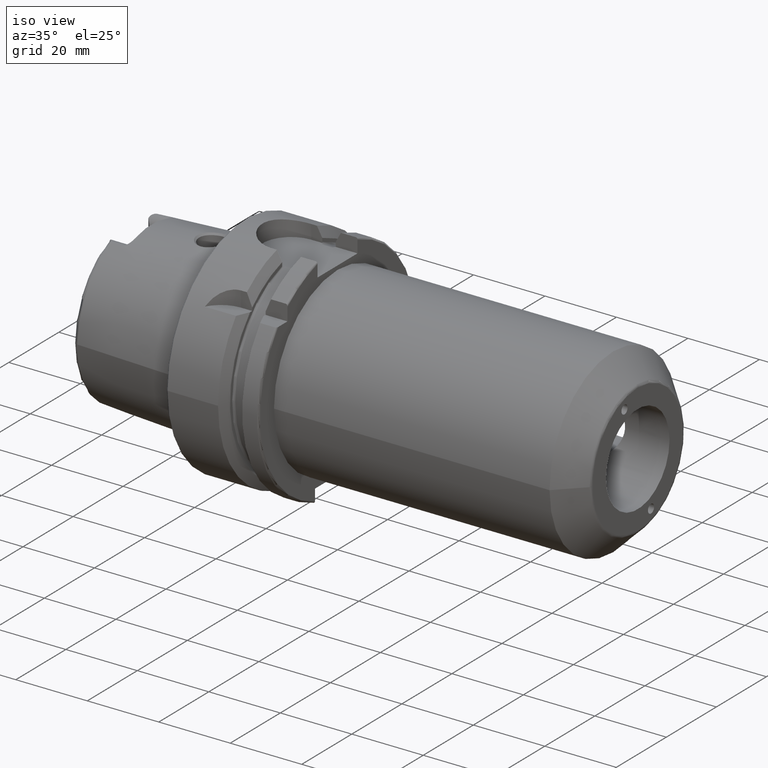
[diagram: clean part render]
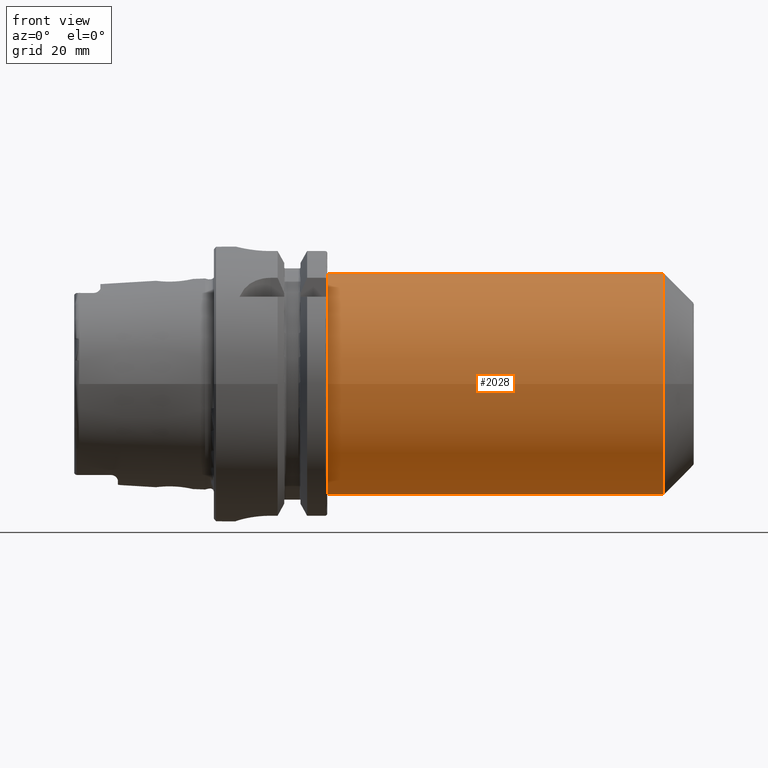
[diagram: tour spotlight — one face highlighted and labeled with its STEP entity id]
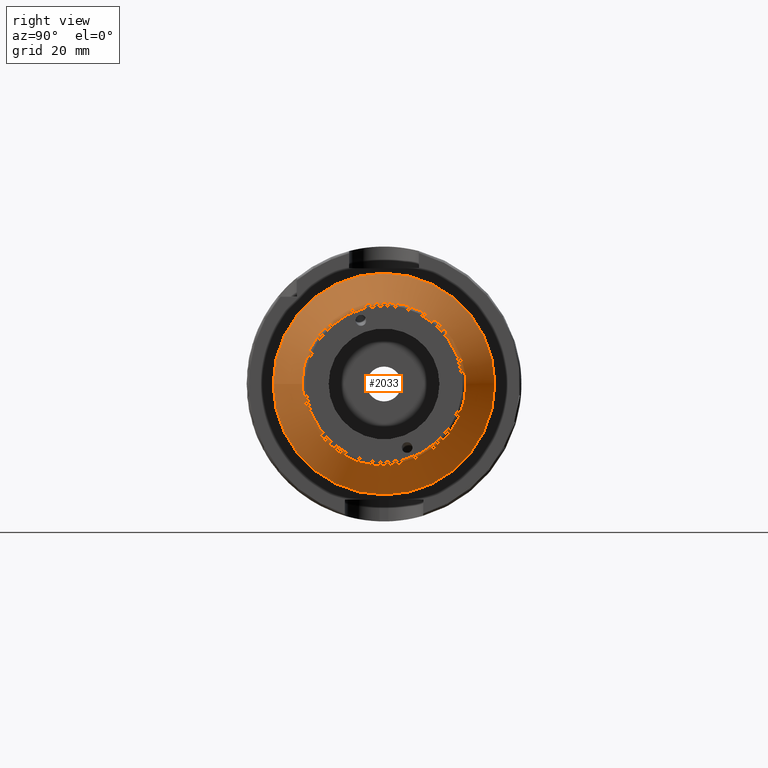
[diagram: tour spotlight — one face highlighted and labeled with its STEP entity id]
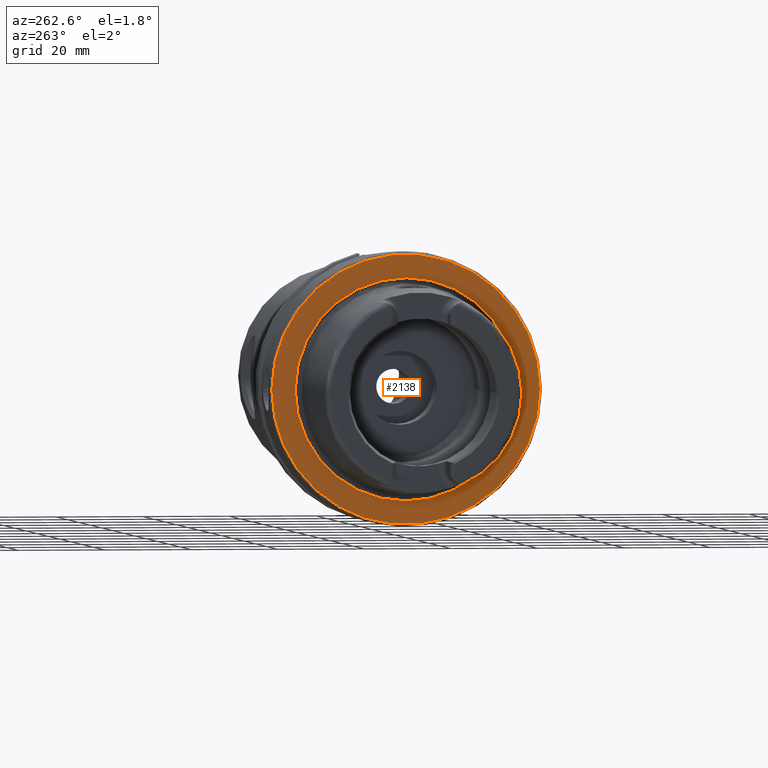
[diagram: tour spotlight — one face highlighted and labeled with its STEP entity id]
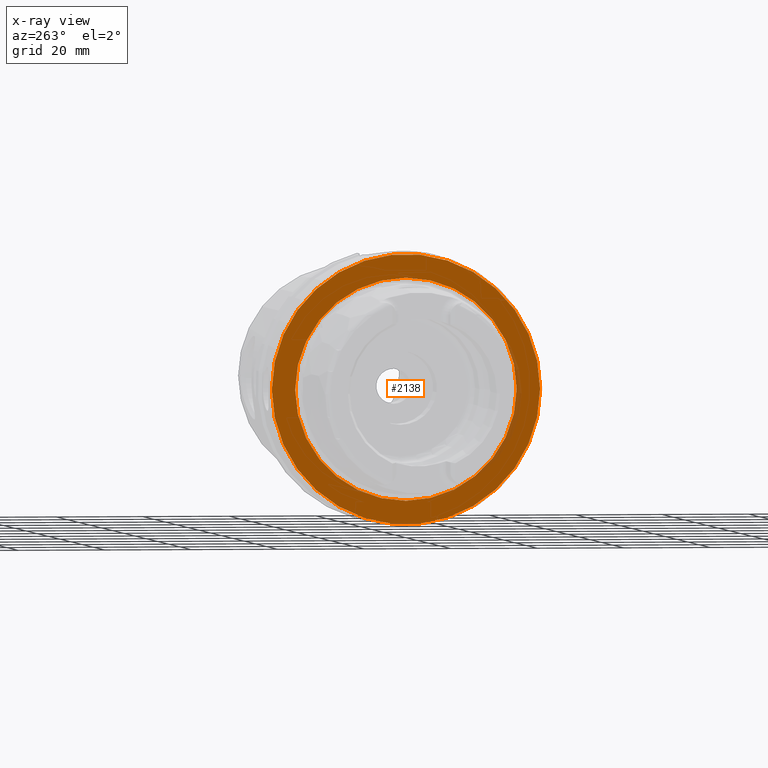
[diagram: x-ray of the same camera — body ghosted, this tour face saturated]
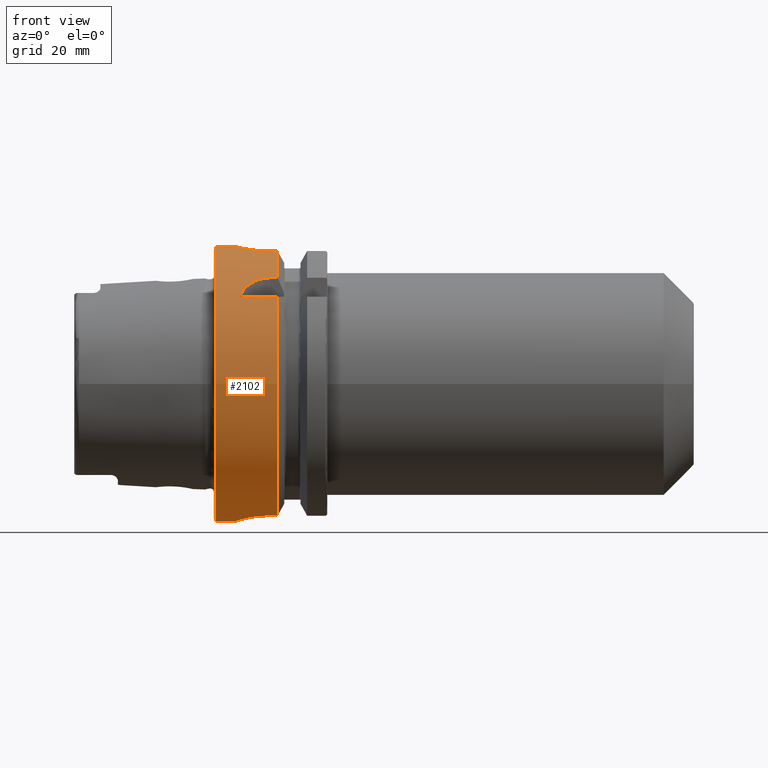
[diagram: tour spotlight — one face highlighted and labeled with its STEP entity id]
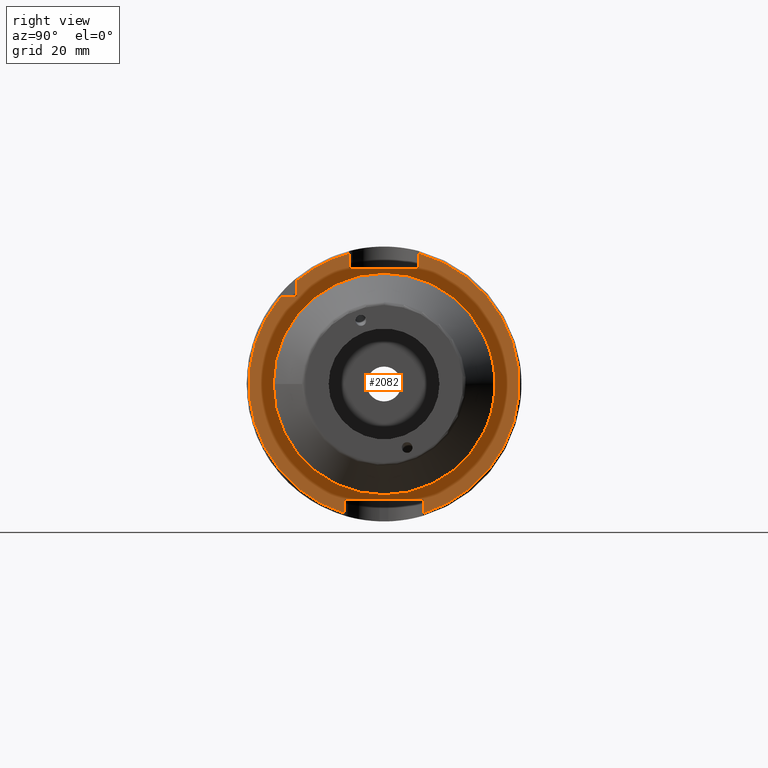
[diagram: tour spotlight — one face highlighted and labeled with its STEP entity id]
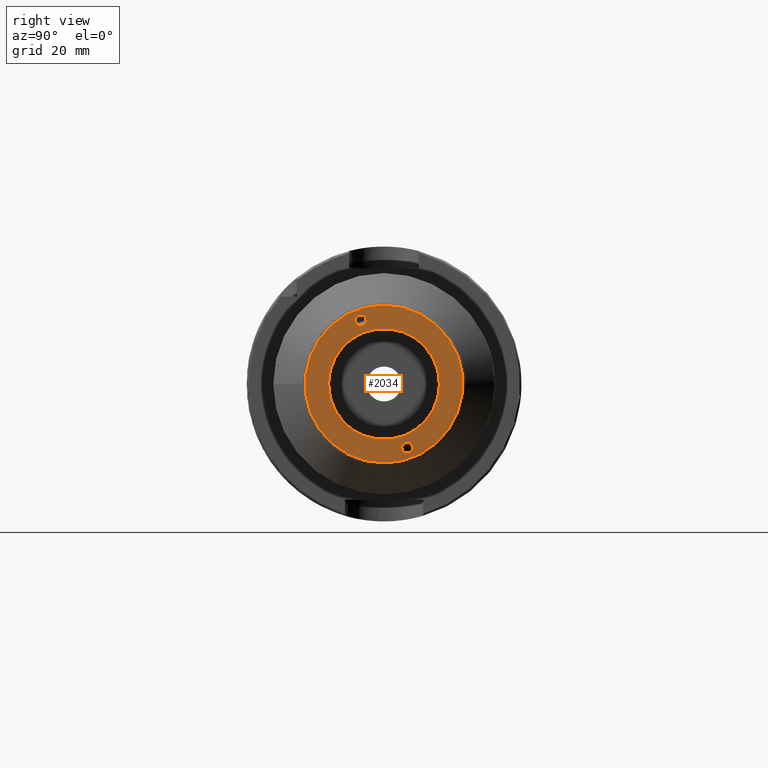
[diagram: tour spotlight — one face highlighted and labeled with its STEP entity id]
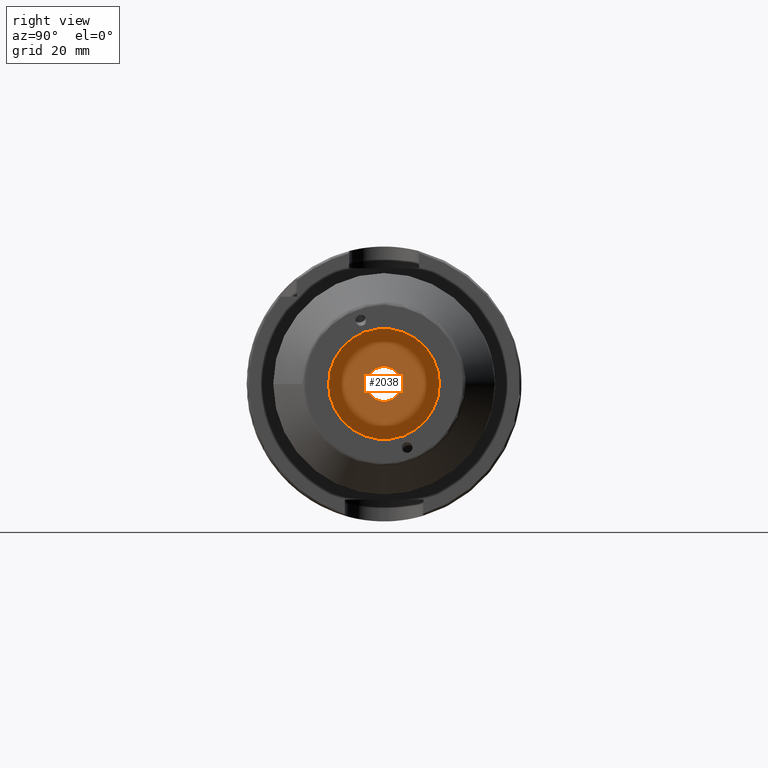
[diagram: tour spotlight — one face highlighted and labeled with its STEP entity id]
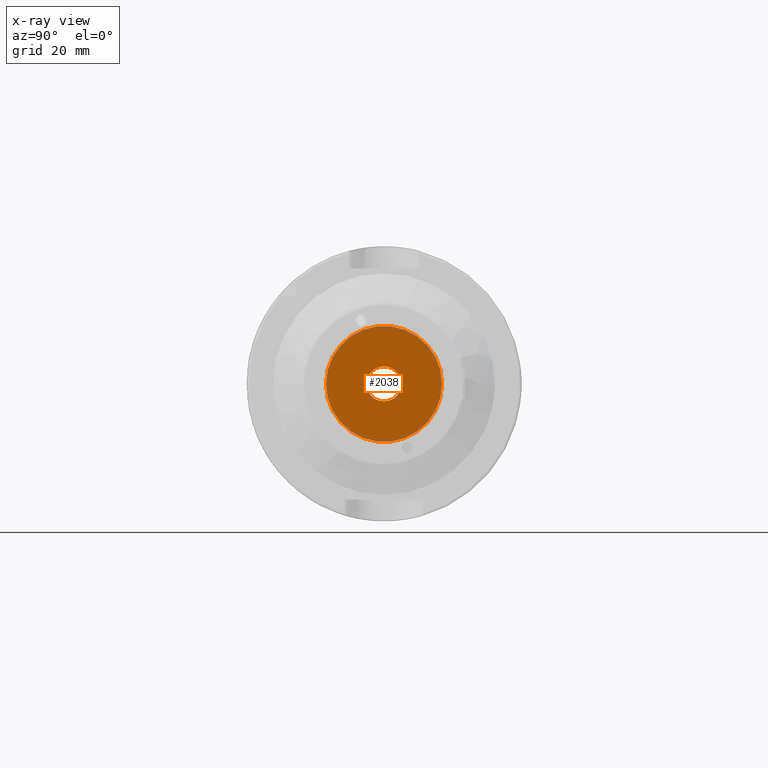
[diagram: x-ray of the same camera — body ghosted, this tour face saturated]
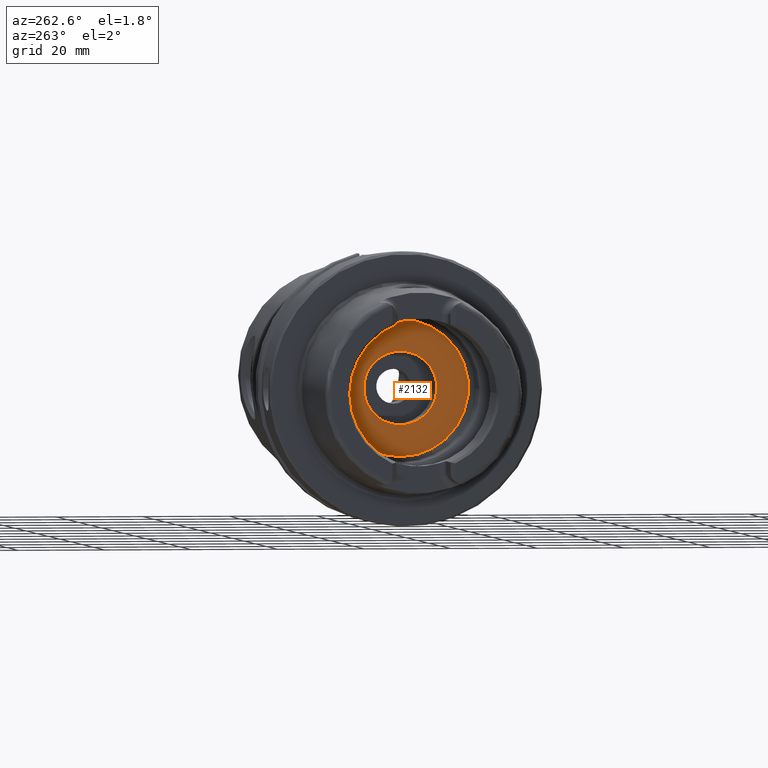
[diagram: tour spotlight — one face highlighted and labeled with its STEP entity id]
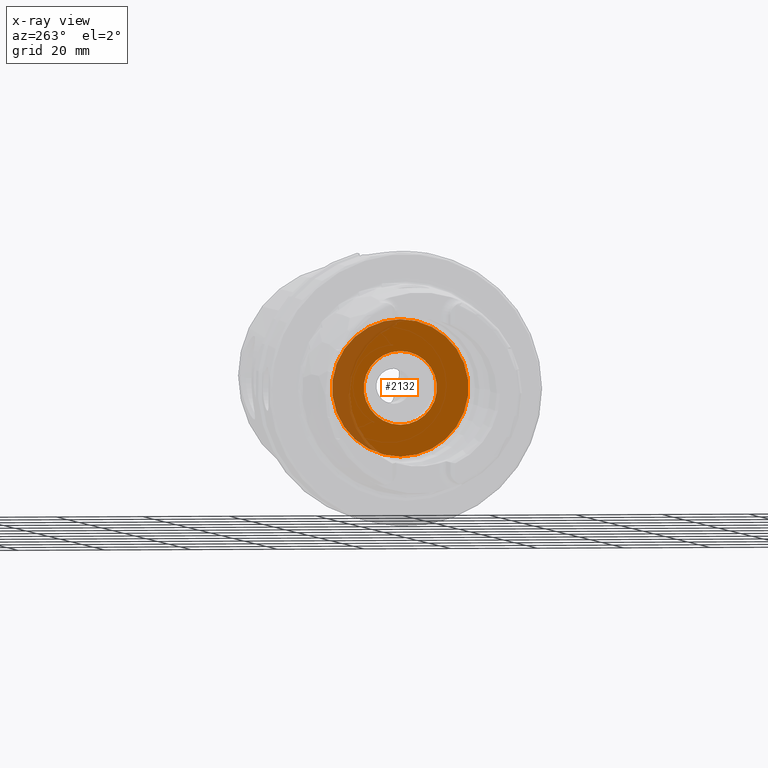
[diagram: x-ray of the same camera — body ghosted, this tour face saturated]
A machine part: a face-by-face anatomy tour. The part has 121 B-rep faces; the first image is the clean iso view, then the 8 largest visible faces are spotlighted one at a time (largest first), each with its STEP entity span.

Face 1 — front view, entity #2028. In plain terms, the highlighted cylindrical surface (bore or boss wall) has radius 25.4 mm, axis along (1, 0, 0).
Definition (entity closure, byte-faithful):
#93=FACE_BOUND('',#355,.T.);
#94=FACE_BOUND('',#356,.T.);
#111=B_SPLINE_CURVE_WITH_KNOTS('',3,(#3208,#3209,#3210,#3211,#3212,#3213,
#3214,#3215,#3216,#3217,#3218,#3219,#3220,#3221,#3222,#3223,#3224,#3225,
#3226,#3227,#3228,#3229,#3230,#3231,#3232,#3233,#3234,#3235,#3236,#3237,
#3238,#3239,#3240),.UNSPECIFIED.,.T.,.F.,(4,1,1,1,1,1,1,1,1,1,1,1,1,1,1,
1,1,1,1,1,1,1,1,1,1,1,1,1,1,1,4),(-9.21588439814322,-9.02780512471172,-8.83972585128023,
-8.69866639620661,-8.65164657784873,-8.46356730441724,-8.27548803098574,
-8.13442857591212,-8.08740875755425,-7.71125021069126,-7.46047784611594,
-7.33509166382827,-7.20970548154061,-6.95893311696529,-6.77085384353379,
-6.70816075238996,-6.45738838781464,-6.20661602323931,-6.06555656816569,
-6.01853674980782,-5.83045747637632,-5.64237820294483,-5.50131874787121,
-5.45429892951333,-5.07814038265034,-4.89006110921885,-4.70198183578736,
-4.51390256235586,-4.32582328892437,-4.13774401549287,-3.94966474206138),
 .UNSPECIFIED.);
#114=B_SPLINE_CURVE_WITH_KNOTS('',3,(#3288,#3289,#3290,#3291,#3292,#3293,
#3294,#3295,#3296,#3297,#3298,#3299,#3300,#3301,#3302,#3303,#3304,#3305,
#3306,#3307,#3308,#3309,#3310,#3311,#3312,#3313,#3314,#3315,#3316,#3317,
#3318),.UNSPECIFIED.,.T.,.F.,(4,1,1,1,1,1,1,1,1,1,1,1,1,1,1,1,1,1,1,1,1,
1,1,1,1,1,1,1,4),(-9.21588439814322,-8.83972585128023,-8.65164657784873,
-8.46356730441724,-8.21279493984191,-7.96202257526659,-7.83663639297893,
-7.71125021069126,-7.46047784611594,-7.33509166382827,-7.20970548154061,
-7.08431929925295,-6.95893311696529,-6.70816075238996,-6.45738838781463,
-6.20661602323931,-6.08122984095165,-5.95584365866398,-5.83045747637632,
-5.70507129408866,-5.57968511180099,-5.45429892951333,-5.07814038265034,
-4.89006110921885,-4.70198183578735,-4.51390256235586,-4.32582328892437,
-4.13774401549287,-3.94966474206138),.UNSPECIFIED.);
#193=CYLINDRICAL_SURFACE('',#2175,25.4);
#233=FACE_OUTER_BOUND('',#354,.T.);
#354=EDGE_LOOP('',(#1385,#1386,#1387,#1388));
#355=EDGE_LOOP('',(#1389));
#356=EDGE_LOOP('',(#1390));
#492=LINE('',#3285,#604);
#604=VECTOR('',#2443,25.4);
#712=CIRCLE('',#2176,25.4);
#713=CIRCLE('',#2177,25.4);
#836=VERTEX_POINT('',#3172);
#840=VERTEX_POINT('',#3282);
#841=VERTEX_POINT('',#3284);
#842=VERTEX_POINT('',#3287);
#1050=EDGE_CURVE('',#836,#836,#111,.T.);
#1054=EDGE_CURVE('',#840,#840,#712,.T.);
#1055=EDGE_CURVE('',#840,#841,#492,.T.);
#1056=EDGE_CURVE('',#841,#841,#713,.T.);
#1057=EDGE_CURVE('',#842,#842,#114,.T.);
#1385=ORIENTED_EDGE('',*,*,#1054,.F.);
#1386=ORIENTED_EDGE('',*,*,#1055,.T.);
#1387=ORIENTED_EDGE('',*,*,#1056,.F.);
#1388=ORIENTED_EDGE('',*,*,#1055,.F.);
#1389=ORIENTED_EDGE('',*,*,#1057,.F.);
#1390=ORIENTED_EDGE('',*,*,#1050,.F.);
#2028=ADVANCED_FACE('',(#233,#93,#94),#193,.T.);
#2175=AXIS2_PLACEMENT_3D('',#3281,#2439,#2440);
#2176=AXIS2_PLACEMENT_3D('',#3283,#2441,#2442);
#2177=AXIS2_PLACEMENT_3D('',#3286,#2444,#2445);
#2439=DIRECTION('center_axis',(1.,0.,0.));
#2440=DIRECTION('ref_axis',(0.,1.,0.));
#2441=DIRECTION('center_axis',(1.,0.,0.));
#2442=DIRECTION('ref_axis',(0.,0.,-1.));
#2443=DIRECTION('',(-1.,0.,0.));
#2444=DIRECTION('center_axis',(-1.,0.,0.));
#2445=DIRECTION('ref_axis',(0.,1.,0.));
#3172=CARTESIAN_POINT('',(56.3386,25.4,5.55111512312578E-16));
#3208=CARTESIAN_POINT('Ctrl Pts',(56.3386,25.4,5.55111512312578E-16));
#3209=CARTESIAN_POINT('Ctrl Pts',(56.3386,25.4,0.699313079614192));
#3210=CARTESIAN_POINT('Ctrl Pts',(56.4938320971844,25.3402153227254,2.1492527990145));
#3211=CARTESIAN_POINT('Ctrl Pts',(57.1709552586074,25.0916539260704,4.07394544882475));
#3212=CARTESIAN_POINT('Ctrl Pts',(57.9191296848627,24.8414150528071,5.32394253799501));
#3213=CARTESIAN_POINT('Ctrl Pts',(58.7848866548021,24.5744711166452,6.45554682898256));
#3214=CARTESIAN_POINT('Ctrl Pts',(59.8666131696035,24.2699988533883,7.53395137506705));
#3215=CARTESIAN_POINT('Ctrl Pts',(61.575470473689,23.8994382789921,8.61602243156506));
#3216=CARTESIAN_POINT('Ctrl Pts',(62.9570570042602,23.7008162556975,9.13652128466162));
#3217=CARTESIAN_POINT('Ctrl Pts',(65.104317133333,23.4863737769105,9.67716600384494));
#3218=CARTESIAN_POINT('Ctrl Pts',(67.6872707753399,23.4867355364431,9.67802944275514));
#3219=CARTESIAN_POINT('Ctrl Pts',(70.5041159923409,23.9086917129853,8.60657543240663));
#3220=CARTESIAN_POINT('Ctrl Pts',(72.0913833719856,24.2704481401536,7.50782121249527));
#3221=CARTESIAN_POINT('Ctrl Pts',(73.4379333940325,24.6303671138508,6.27099023863485));
#3222=CARTESIAN_POINT('Ctrl Pts',(74.6843596677151,25.0385206770496,4.48516542598071));
#3223=CARTESIAN_POINT('Ctrl Pts',(75.3425340873004,25.2800716960369,2.6142553590417));
#3224=CARTESIAN_POINT('Ctrl Pts',(75.6960069272916,25.4128000700879,0.702490983242716));
#3225=CARTESIAN_POINT('Ctrl Pts',(75.7042485506348,25.4159440598906,-1.40855398697861));
#3226=CARTESIAN_POINT('Ctrl Pts',(74.9576028044709,25.1350037074906,-3.87149180203649));
#3227=CARTESIAN_POINT('Ctrl Pts',(74.0815751805613,24.8415136794436,-5.32257908844066));
#3228=CARTESIAN_POINT('Ctrl Pts',(73.2163147279893,24.5748536746509,-6.45625941339476));
#3229=CARTESIAN_POINT('Ctrl Pts',(72.1327472171503,24.270131272988,-7.53147065672028));
#3230=CARTESIAN_POINT('Ctrl Pts',(70.4244043434215,23.8994551161301,-8.61610748889955));
#3231=CARTESIAN_POINT('Ctrl Pts',(69.042288010667,23.700713397532,-9.13614277230994));
#3232=CARTESIAN_POINT('Ctrl Pts',(66.8963356018271,23.4864598109728,-9.67742028955726));
#3233=CARTESIAN_POINT('Ctrl Pts',(64.5558519067611,23.4871590714245,-9.67776341225542));
#3234=CARTESIAN_POINT('Ctrl Pts',(61.7239710039378,23.8663798129332,-8.71430963240455));
#3235=CARTESIAN_POINT('Ctrl Pts',(59.8748123604185,24.2690224036793,-7.53468361599722));
#3236=CARTESIAN_POINT('Ctrl Pts',(58.4165012817944,24.6772826259743,-6.09448369247938));
#3237=CARTESIAN_POINT('Ctrl Pts',(57.2281615112568,25.0700161599468,-4.2474059316437));
#3238=CARTESIAN_POINT('Ctrl Pts',(56.4962071963405,25.339683253983,-2.15016300749193));
#3239=CARTESIAN_POINT('Ctrl Pts',(56.3386,25.4,-0.699313079614161));
#3240=CARTESIAN_POINT('Ctrl Pts',(56.3386,25.4,5.55111512312578E-16));
#3281=CARTESIAN_POINT('Origin',(64.55,0.,0.));
#3282=CARTESIAN_POINT('',(103.1,-25.4,-3.11060286983428E-15));
#3283=CARTESIAN_POINT('Origin',(103.1,0.,0.));
#3284=CARTESIAN_POINT('',(26.,-25.4,-3.11060286983428E-15));
#3285=CARTESIAN_POINT('',(64.55,-25.4,-3.11060286983428E-15));
#3286=CARTESIAN_POINT('Origin',(26.,0.,0.));
#3287=CARTESIAN_POINT('',(79.2386,25.4,1.94289029309402E-15));
#3288=CARTESIAN_POINT('Ctrl Pts',(79.2386,25.4,1.94289029309402E-15));
#3289=CARTESIAN_POINT('Ctrl Pts',(79.2386,25.4,1.39862615922836));
#3290=CARTESIAN_POINT('Ctrl Pts',(79.7287302378019,25.2034578888794,3.63671102008616));
#3291=CARTESIAN_POINT('Ctrl Pts',(81.3209025467737,24.6758395513955,6.09393666127056));
#3292=CARTESIAN_POINT('Ctrl Pts',(82.9320682910099,24.2244379814923,7.69749153243879));
#3293=CARTESIAN_POINT('Ctrl Pts',(85.2817173410894,23.7334979416263,9.07350059350137));
#3294=CARTESIAN_POINT('Ctrl Pts',(87.7263567765047,23.5129982675131,9.60424958307581));
#3295=CARTESIAN_POINT('Ctrl Pts',(89.6010888323331,23.5147409565799,9.60341926329181));
#3296=CARTESIAN_POINT('Ctrl Pts',(91.5399390131449,23.6273724028359,9.32439383692116));
#3297=CARTESIAN_POINT('Ctrl Pts',(93.3978088221504,23.9093067448577,8.60395423347237));
#3298=CARTESIAN_POINT('Ctrl Pts',(94.9924694636818,24.2698770707355,7.51089736506685));
#3299=CARTESIAN_POINT('Ctrl Pts',(96.0007525932334,24.5404775415483,6.5814327612284));
#3300=CARTESIAN_POINT('Ctrl Pts',(96.8905944566888,24.8109281087553,5.48137647238583));
#3301=CARTESIAN_POINT('Ctrl Pts',(97.8782381577445,25.1426594052139,3.8090756776121));
#3302=CARTESIAN_POINT('Ctrl Pts',(98.6008681989769,25.4146112162586,1.40713474218647));
#3303=CARTESIAN_POINT('Ctrl Pts',(98.5972504243207,25.4136307619125,-1.40896016777873));
#3304=CARTESIAN_POINT('Ctrl Pts',(97.8769134059563,25.1422887860784,-3.80736258993673));
#3305=CARTESIAN_POINT('Ctrl Pts',(96.8890767378994,24.8106293122637,-5.48156071601987));
#3306=CARTESIAN_POINT('Ctrl Pts',(95.9994679421346,24.5405753158691,-6.57973364518465));
#3307=CARTESIAN_POINT('Ctrl Pts',(94.9917191006537,24.2698605404455,-7.51028582010259));
#3308=CARTESIAN_POINT('Ctrl Pts',(93.7929104883185,23.9995067309328,-8.32969837647721));
#3309=CARTESIAN_POINT('Ctrl Pts',(92.4711923670209,23.7682056133337,-8.96400757470613));
#3310=CARTESIAN_POINT('Ctrl Pts',(90.0900418066098,23.4864123620891,-9.67952373987339));
#3311=CARTESIAN_POINT('Ctrl Pts',(87.4646602786133,23.4873830762745,-9.67661347637205));
#3312=CARTESIAN_POINT('Ctrl Pts',(84.6257696975751,23.8663701308699,-8.71468108357823));
#3313=CARTESIAN_POINT('Ctrl Pts',(82.7745409899239,24.2698722129659,-7.53183023562838));
#3314=CARTESIAN_POINT('Ctrl Pts',(81.3207415440559,24.6765423627272,-6.09625070347835));
#3315=CARTESIAN_POINT('Ctrl Pts',(80.1291819398135,25.069982483487,-4.24735742649744));
#3316=CARTESIAN_POINT('Ctrl Pts',(79.3965957741184,25.3396457151291,-2.15044964079205));
#3317=CARTESIAN_POINT('Ctrl Pts',(79.2386,25.4,-0.699313079614162));
#3318=CARTESIAN_POINT('Ctrl Pts',(79.2386,25.4,4.9960036108132E-15));

Face 2 — right view, entity #2033. In plain terms, the highlighted conical surface has half-angle 45 deg.
Definition (entity closure, byte-faithful):
#238=FACE_OUTER_BOUND('',#361,.T.);
#361=EDGE_LOOP('',(#1409,#1410,#1411,#1412,#1413));
#496=LINE('',#3531,#608);
#608=VECTOR('',#2469,21.95);
#712=CIRCLE('',#2176,25.4);
#718=CIRCLE('',#2185,18.7928932188135);
#719=CIRCLE('',#2186,18.7928932188135);
#840=VERTEX_POINT('',#3282);
#849=VERTEX_POINT('',#3525);
#850=VERTEX_POINT('',#3527);
#1054=EDGE_CURVE('',#840,#840,#712,.T.);
#1068=EDGE_CURVE('',#849,#850,#718,.T.);
#1069=EDGE_CURVE('',#850,#849,#719,.T.);
#1070=EDGE_CURVE('',#850,#840,#496,.T.);
#1409=ORIENTED_EDGE('',*,*,#1069,.F.);
#1410=ORIENTED_EDGE('',*,*,#1070,.T.);
#1411=ORIENTED_EDGE('',*,*,#1054,.T.);
#1412=ORIENTED_EDGE('',*,*,#1070,.F.);
#1413=ORIENTED_EDGE('',*,*,#1068,.F.);
#2008=CONICAL_SURFACE('',#2187,21.95,0.785398163397449);
#2033=ADVANCED_FACE('',(#238),#2008,.T.);
#2176=AXIS2_PLACEMENT_3D('',#3283,#2441,#2442);
#2185=AXIS2_PLACEMENT_3D('',#3528,#2463,#2464);
#2186=AXIS2_PLACEMENT_3D('',#3529,#2465,#2466);
#2187=AXIS2_PLACEMENT_3D('',#3530,#2467,#2468);
#2441=DIRECTION('center_axis',(1.,0.,0.));
#2442=DIRECTION('ref_axis',(0.,0.,-1.));
#2463=DIRECTION('center_axis',(1.,0.,0.));
#2464=DIRECTION('ref_axis',(0.,-1.,3.06161699786838E-17));
#2465=DIRECTION('center_axis',(1.,0.,0.));
#2466=DIRECTION('ref_axis',(0.,-1.,3.06161699786838E-17));
#2467=DIRECTION('center_axis',(-1.,0.,0.));
#2468=DIRECTION('ref_axis',(0.,1.,0.));
#2469=DIRECTION('',(-0.707106781186547,-0.707106781186548,-8.65956056235494E-17));
#3282=CARTESIAN_POINT('',(103.1,-25.4,-3.11060286983428E-15));
#3283=CARTESIAN_POINT('Origin',(103.1,0.,0.));
#3525=CARTESIAN_POINT('',(109.707106781187,-2.30146565271379E-15,18.7928932188135));
#3527=CARTESIAN_POINT('',(109.707106781187,-18.7928932188135,-2.30146565271379E-15));
#3528=CARTESIAN_POINT('Origin',(109.707106781187,0.,-2.87683206589224E-15));
#3529=CARTESIAN_POINT('Origin',(109.707106781187,0.,-2.87683206589224E-15));
#3530=CARTESIAN_POINT('Origin',(106.55,0.,0.));
#3531=CARTESIAN_POINT('',(106.55,-21.95,-2.68809972412844E-15));

Face 3 — auxiliary view, entity #2138. An x-ray twin of the same camera follows (body ghosted, this face saturated) — the face is partly hidden behind the body. In plain terms, the highlighted planar face has unit normal (-1, 0, 0).
Definition (entity closure, byte-faithful):
#70=PLANE('',#2403);
#109=FACE_BOUND('',#481,.T.);
#343=FACE_OUTER_BOUND('',#480,.T.);
#480=EDGE_LOOP('',(#1985));
#481=EDGE_LOOP('',(#1986));
#824=CIRCLE('',#2402,25.5879092835167);
#825=CIRCLE('',#2404,31.);
#1035=VERTEX_POINT('',#4927);
#1036=VERTEX_POINT('',#4931);
#1353=EDGE_CURVE('',#1035,#1035,#824,.T.);
#1354=EDGE_CURVE('',#1036,#1036,#825,.T.);
#1985=ORIENTED_EDGE('',*,*,#1354,.F.);
#1986=ORIENTED_EDGE('',*,*,#1353,.T.);
#2138=ADVANCED_FACE('',(#343,#109),#70,.T.);
#2402=AXIS2_PLACEMENT_3D('',#4929,#2996,#2997);
#2403=AXIS2_PLACEMENT_3D('',#4930,#2998,#2999);
#2404=AXIS2_PLACEMENT_3D('',#4932,#3000,#3001);
#2996=DIRECTION('center_axis',(1.,0.,0.));
#2997=DIRECTION('ref_axis',(0.,0.,-1.));
#2998=DIRECTION('center_axis',(-1.,0.,0.));
#2999=DIRECTION('ref_axis',(0.,0.,1.));
#3000=DIRECTION('center_axis',(1.,0.,0.));
#3001=DIRECTION('ref_axis',(0.,0.,-1.));
#4927=CARTESIAN_POINT('',(-3.55618312575245E-16,-25.5879092835167,-3.13361512009315E-15));
#4929=CARTESIAN_POINT('Origin',(0.,0.,0.));
#4930=CARTESIAN_POINT('Origin',(0.,31.,0.));
#4931=CARTESIAN_POINT('',(-5.89805981832114E-16,-31.,-3.7964050773568E-15));
#4932=CARTESIAN_POINT('Origin',(0.,0.,0.));

Face 4 — front view, entity #2102. In plain terms, the highlighted cylindrical surface (bore or boss wall) has radius 31.5 mm, axis along (1, 0, 0).
Definition (entity closure, byte-faithful):
#105=FACE_BOUND('',#441,.T.);
#144=B_SPLINE_CURVE_WITH_KNOTS('',3,(#4261,#4262,#4263,#4264,#4265,#4266,
#4267,#4268,#4269,#4270,#4271,#4272,#4273,#4274,#4275,#4276,#4277,#4278,
#4279,#4280,#4281,#4282,#4283,#4284,#4285,#4286),.UNSPECIFIED.,.F.,.F.,
(4,2,2,2,2,2,2,2,2,2,2,2,4),(0.,0.188688694287612,0.377377388575223,0.56606194688798,
0.754746505200737,0.943431063513494,1.13211562182625,1.32080431611386,1.50949301040147,
1.69818170468909,1.8868703989767,2.07555495728945,2.26423951560221),
 .UNSPECIFIED.);
#145=B_SPLINE_CURVE_WITH_KNOTS('',3,(#4287,#4288,#4289,#4290,#4291,#4292,
#4293,#4294,#4295,#4296),.UNSPECIFIED.,.F.,.F.,(4,2,2,2,4),(2.26423951560221,
2.45292407391497,2.64160863222773,2.83029732651534,3.01898602080295),
 .UNSPECIFIED.);
#148=B_SPLINE_CURVE_WITH_KNOTS('',3,(#4358,#4359,#4360,#4361,#4362,#4363,
#4364,#4365,#4366,#4367,#4368,#4369),.UNSPECIFIED.,.F.,.F.,(4,2,2,2,2,4),
(1.1085154204615,1.31979218709236,1.52798350480179,1.73617482251122,1.90421770126337,
2.07226058001552),.UNSPECIFIED.);
#158=B_SPLINE_CURVE_WITH_KNOTS('',3,(#4547,#4548,#4549,#4550,#4551,#4552,
#4553,#4554,#4555,#4556),.UNSPECIFIED.,.F.,.F.,(4,2,2,2,4),(1.20927420824097,
1.5131742975437,1.81707438684643,2.12000449915965,2.42293461147287),
 .UNSPECIFIED.);
#161=B_SPLINE_CURVE_WITH_KNOTS('',3,(#4582,#4583,#4584,#4585,#4586,#4587,
#4588,#4589,#4590,#4591),.UNSPECIFIED.,.F.,.F.,(4,2,2,2,4),(0.,0.30293011231322,
0.605860224626439,0.90976031392917,1.2136604032319),.UNSPECIFIED.);
#171=B_SPLINE_CURVE_WITH_KNOTS('',3,(#4746,#4747,#4748,#4749,#4750,#4751,
#4752,#4753,#4754,#4755,#4756,#4757,#4758,#4759,#4760,#4761,#4762,#4763),
 .UNSPECIFIED.,.F.,.F.,(4,2,2,2,2,2,2,2,4),(0.,0.302805879979318,0.605611759958635,
0.908372461246501,1.21113316253437,1.51389386382223,1.8166545651101,2.11946044508942,
2.42226632506874),.UNSPECIFIED.);
#215=CYLINDRICAL_SURFACE('',#2325,31.5);
#307=FACE_OUTER_BOUND('',#440,.T.);
#440=EDGE_LOOP('',(#1802,#1803,#1804,#1805,#1806,#1807,#1808,#1809,#1810,
#1811,#1812,#1813,#1814,#1815,#1816,#1817,#1818,#1819));
#441=EDGE_LOOP('',(#1820,#1821));
#534=LINE('',#4331,#646);
#540=LINE('',#4378,#652);
#561=LINE('',#4564,#673);
#562=LINE('',#4568,#674);
#577=LINE('',#4740,#689);
#580=LINE('',#4770,#692);
#582=LINE('',#4776,#694);
#646=VECTOR('',#2643,10.);
#652=VECTOR('',#2655,10.);
#673=VECTOR('',#2724,10.);
#674=VECTOR('',#2727,10.);
#689=VECTOR('',#2814,10.);
#692=VECTOR('',#2825,10.);
#694=VECTOR('',#2833,31.5);
#756=CIRCLE('',#2264,31.5);
#757=CIRCLE('',#2265,31.5);
#766=CIRCLE('',#2286,31.5);
#767=CIRCLE('',#2288,31.5);
#783=CIRCLE('',#2326,31.5);
#784=CIRCLE('',#2327,31.5);
#925=VERTEX_POINT('',#4258);
#926=VERTEX_POINT('',#4260);
#936=VERTEX_POINT('',#4328);
#937=VERTEX_POINT('',#4330);
#942=VERTEX_POINT('',#4357);
#944=VERTEX_POINT('',#4374);
#949=VERTEX_POINT('',#4390);
#950=VERTEX_POINT('',#4392);
#980=VERTEX_POINT('',#4545);
#981=VERTEX_POINT('',#4546);
#982=VERTEX_POINT('',#4566);
#983=VERTEX_POINT('',#4567);
#986=VERTEX_POINT('',#4581);
#987=VERTEX_POINT('',#4596);
#1006=VERTEX_POINT('',#4737);
#1007=VERTEX_POINT('',#4739);
#1008=VERTEX_POINT('',#4745);
#1010=VERTEX_POINT('',#4775);
#1170=EDGE_CURVE('',#926,#925,#144,.T.);
#1171=EDGE_CURVE('',#925,#926,#145,.T.);
#1181=EDGE_CURVE('',#937,#936,#534,.T.);
#1188=EDGE_CURVE('',#936,#942,#148,.T.);
#1192=EDGE_CURVE('',#942,#944,#540,.T.);
#1198=EDGE_CURVE('',#937,#949,#756,.T.);
#1199=EDGE_CURVE('',#949,#950,#757,.T.);
#1237=EDGE_CURVE('',#980,#981,#158,.T.);
#1241=EDGE_CURVE('',#981,#950,#561,.T.);
#1242=EDGE_CURVE('',#982,#983,#562,.T.);
#1247=EDGE_CURVE('',#983,#986,#161,.T.);
#1249=EDGE_CURVE('',#986,#980,#766,.T.);
#1250=EDGE_CURVE('',#982,#987,#767,.T.);
#1287=EDGE_CURVE('',#1007,#1006,#577,.T.);
#1289=EDGE_CURVE('',#1006,#1008,#171,.T.);
#1293=EDGE_CURVE('',#1008,#987,#580,.T.);
#1295=EDGE_CURVE('',#1007,#944,#783,.T.);
#1296=EDGE_CURVE('',#949,#1010,#582,.T.);
#1297=EDGE_CURVE('',#1010,#1010,#784,.T.);
#1802=ORIENTED_EDGE('',*,*,#1192,.T.);
#1803=ORIENTED_EDGE('',*,*,#1295,.F.);
#1804=ORIENTED_EDGE('',*,*,#1287,.T.);
#1805=ORIENTED_EDGE('',*,*,#1289,.T.);
#1806=ORIENTED_EDGE('',*,*,#1293,.T.);
#1807=ORIENTED_EDGE('',*,*,#1250,.F.);
#1808=ORIENTED_EDGE('',*,*,#1242,.T.);
#1809=ORIENTED_EDGE('',*,*,#1247,.T.);
#1810=ORIENTED_EDGE('',*,*,#1249,.T.);
#1811=ORIENTED_EDGE('',*,*,#1237,.T.);
#1812=ORIENTED_EDGE('',*,*,#1241,.T.);
#1813=ORIENTED_EDGE('',*,*,#1199,.F.);
#1814=ORIENTED_EDGE('',*,*,#1296,.T.);
#1815=ORIENTED_EDGE('',*,*,#1297,.T.);
#1816=ORIENTED_EDGE('',*,*,#1296,.F.);
#1817=ORIENTED_EDGE('',*,*,#1198,.F.);
#1818=ORIENTED_EDGE('',*,*,#1181,.T.);
#1819=ORIENTED_EDGE('',*,*,#1188,.T.);
#1820=ORIENTED_EDGE('',*,*,#1170,.T.);
#1821=ORIENTED_EDGE('',*,*,#1171,.T.);
#2102=ADVANCED_FACE('',(#307,#105),#215,.T.);
#2264=AXIS2_PLACEMENT_3D('',#4391,#2668,#2669);
#2265=AXIS2_PLACEMENT_3D('',#4393,#2670,#2671);
#2286=AXIS2_PLACEMENT_3D('',#4594,#2735,#2736);
#2288=AXIS2_PLACEMENT_3D('',#4597,#2739,#2740);
#2325=AXIS2_PLACEMENT_3D('',#4773,#2829,#2830);
#2326=AXIS2_PLACEMENT_3D('',#4774,#2831,#2832);
#2327=AXIS2_PLACEMENT_3D('',#4777,#2834,#2835);
#2643=DIRECTION('',(-1.,0.,0.));
#2655=DIRECTION('',(1.,0.,0.));
#2668=DIRECTION('center_axis',(1.,0.,0.));
#2669=DIRECTION('ref_axis',(0.,0.,-1.));
#2670=DIRECTION('center_axis',(1.,0.,0.));
#2671=DIRECTION('ref_axis',(0.,0.,-1.));
#2724=DIRECTION('',(1.,0.,0.));
#2727=DIRECTION('',(-1.,0.,0.));
#2735=DIRECTION('center_axis',(-1.,0.,0.));
#2736=DIRECTION('ref_axis',(0.,1.,0.));
#2739=DIRECTION('center_axis',(1.,0.,0.));
#2740=DIRECTION('ref_axis',(0.,0.,-1.));
#2814=DIRECTION('',(-1.,0.,0.));
#2825=DIRECTION('',(1.,0.,0.));
#2829=DIRECTION('center_axis',(1.,0.,0.));
#2830=DIRECTION('ref_axis',(0.,1.,0.));
#2831=DIRECTION('center_axis',(1.,0.,0.));
#2832=DIRECTION('ref_axis',(0.,0.,-1.));
#2833=DIRECTION('',(-1.,0.,0.));
#2834=DIRECTION('center_axis',(1.,0.,0.));
#2835=DIRECTION('ref_axis',(0.,0.,-1.));
#4258=CARTESIAN_POINT('',(12.,31.5,-6.12323399573677E-16));
#4260=CARTESIAN_POINT('',(7.,31.100643080168,5.));
#4261=CARTESIAN_POINT('Ctrl Pts',(7.,31.100643080168,5.));
#4262=CARTESIAN_POINT('Ctrl Pts',(6.37103768570796,31.100643080168,5.));
#4263=CARTESIAN_POINT('Ctrl Pts',(5.70089281579202,31.1216953112949,4.87408354368814));
#4264=CARTESIAN_POINT('Ctrl Pts',(4.46931934300962,31.1973810209855,4.36348784122736));
#4265=CARTESIAN_POINT('Ctrl Pts',(3.90779781350673,31.2508828501623,3.97886562537221));
#4266=CARTESIAN_POINT('Ctrl Pts',(3.021144092268,31.3510329557602,3.09221190413348));
#4267=CARTESIAN_POINT('Ctrl Pts',(2.63651425348544,31.4042391414288,2.5306861925578));
#4268=CARTESIAN_POINT('Ctrl Pts',(2.12591301120586,31.4792463697936,1.29909839144709));
#4269=CARTESIAN_POINT('Ctrl Pts',(2.,31.5,0.62894852770919));
#4270=CARTESIAN_POINT('Ctrl Pts',(2.,31.5,-0.62894852770919));
#4271=CARTESIAN_POINT('Ctrl Pts',(2.12591301120586,31.4792463697936,-1.29909839144709));
#4272=CARTESIAN_POINT('Ctrl Pts',(2.63651425348544,31.4042391414288,-2.5306861925578));
#4273=CARTESIAN_POINT('Ctrl Pts',(3.021144092268,31.3510329557602,-3.09221190413348));
#4274=CARTESIAN_POINT('Ctrl Pts',(3.90779781350673,31.2508828501623,-3.97886562537221));
#4275=CARTESIAN_POINT('Ctrl Pts',(4.46931934300962,31.1973810209855,-4.36348784122736));
#4276=CARTESIAN_POINT('Ctrl Pts',(5.70089281579202,31.1216953112949,-4.87408354368814));
#4277=CARTESIAN_POINT('Ctrl Pts',(6.37103768570796,31.100643080168,-5.));
#4278=CARTESIAN_POINT('Ctrl Pts',(7.62896231429204,31.100643080168,-5.));
#4279=CARTESIAN_POINT('Ctrl Pts',(8.29910718420798,31.1216953112949,-4.87408354368814));
#4280=CARTESIAN_POINT('Ctrl Pts',(9.53068065699038,31.1973810209855,-4.36348784122736));
#4281=CARTESIAN_POINT('Ctrl Pts',(10.0922021864933,31.2508828501623,-3.97886562537221));
#4282=CARTESIAN_POINT('Ctrl Pts',(10.978855907732,31.3510329557602,-3.09221190413348));
#4283=CARTESIAN_POINT('Ctrl Pts',(11.3634857465146,31.4042391414288,-2.53068619255779));
#4284=CARTESIAN_POINT('Ctrl Pts',(11.8740869887941,31.4792463697936,-1.29909839144708));
#4285=CARTESIAN_POINT('Ctrl Pts',(12.,31.5,-0.62894852770919));
#4286=CARTESIAN_POINT('Ctrl Pts',(12.,31.5,-4.16333634234434E-16));
#4287=CARTESIAN_POINT('Ctrl Pts',(12.,31.5,-1.11022302462516E-15));
#4288=CARTESIAN_POINT('Ctrl Pts',(12.,31.5,0.628948527709188));
#4289=CARTESIAN_POINT('Ctrl Pts',(11.8740869887941,31.4792463697936,1.29909839144708));
#4290=CARTESIAN_POINT('Ctrl Pts',(11.3634857465146,31.4042391414288,2.53068619255779));
#4291=CARTESIAN_POINT('Ctrl Pts',(10.978855907732,31.3510329557602,3.09221190413348));
#4292=CARTESIAN_POINT('Ctrl Pts',(10.0922021864933,31.2508828501623,3.97886562537221));
#4293=CARTESIAN_POINT('Ctrl Pts',(9.53068065699038,31.1973810209855,4.36348784122736));
#4294=CARTESIAN_POINT('Ctrl Pts',(8.29910718420798,31.1216953112949,4.87408354368814));
#4295=CARTESIAN_POINT('Ctrl Pts',(7.62896231429204,31.100643080168,5.));
#4296=CARTESIAN_POINT('Ctrl Pts',(7.,31.100643080168,5.));
#4328=CARTESIAN_POINT('',(5.88828609634419,-24.3361870472759,20.));
#4330=CARTESIAN_POINT('',(14.6225009252407,-24.3361870472759,20.));
#4331=CARTESIAN_POINT('',(7.56125046262034,-24.3361870472759,20.));
#4357=CARTESIAN_POINT('',(13.,-20.,24.3361870472759));
#4358=CARTESIAN_POINT('Ctrl Pts',(5.88828609634419,-24.3361870472759,20.));
#4359=CARTESIAN_POINT('Ctrl Pts',(6.11069532820048,-23.9044753723342,20.5253108035937));
#4360=CARTESIAN_POINT('Ctrl Pts',(6.38325999044306,-23.4713523250807,21.0173865932788));
#4361=CARTESIAN_POINT('Ctrl Pts',(7.044898076458,-22.6317364276543,21.9186738868096));
#4362=CARTESIAN_POINT('Ctrl Pts',(7.46714468561685,-22.1861072682036,22.3682920878559));
#4363=CARTESIAN_POINT('Ctrl Pts',(8.46725531403812,-21.3767026700071,23.143042657319));
#4364=CARTESIAN_POINT('Ctrl Pts',(9.04646427720221,-21.0147449478223,23.4683362269255));
#4365=CARTESIAN_POINT('Ctrl Pts',(10.1145001432702,-20.5200081116516,23.9011603796022));
#4366=CARTESIAN_POINT('Ctrl Pts',(10.670823971716,-20.3234249831704,24.0673462447194));
#4367=CARTESIAN_POINT('Ctrl Pts',(11.8334528721306,-20.063121855676,24.2847667849476));
#4368=CARTESIAN_POINT('Ctrl Pts',(12.4398570708262,-20.,24.3361870472759));
#4369=CARTESIAN_POINT('Ctrl Pts',(13.,-20.,24.3361870472759));
#4374=CARTESIAN_POINT('',(14.6225009252407,-20.,24.3361870472759));
#4378=CARTESIAN_POINT('',(7.56125046262035,-20.,24.3361870472759));
#4390=CARTESIAN_POINT('',(14.6225009252407,-31.5,-3.85763741731416E-15));
#4391=CARTESIAN_POINT('Origin',(14.6225009252407,0.,0.));
#4392=CARTESIAN_POINT('',(14.6225009252407,-9.,-30.1869176962472));
#4393=CARTESIAN_POINT('Origin',(14.6225009252407,0.,0.));
#4545=CARTESIAN_POINT('',(5.,-0.999999999999999,-31.4841229828623));
#4546=CARTESIAN_POINT('',(13.,-9.,-30.1869176962472));
#4547=CARTESIAN_POINT('Ctrl Pts',(5.,-0.999999999999997,-31.4841229828623));
#4548=CARTESIAN_POINT('Ctrl Pts',(5.,-2.01248971281587,-31.4519642432536));
#4549=CARTESIAN_POINT('Ctrl Pts',(5.2037733306458,-3.08756640398171,-31.3640631381934));
#4550=CARTESIAN_POINT('Ctrl Pts',(6.02370102555041,-5.05836608044729,-31.1070804719497));
#4551=CARTESIAN_POINT('Ctrl Pts',(6.63955745341061,-5.95454409907418,-30.9405445582004));
#4552=CARTESIAN_POINT('Ctrl Pts',(8.05472493283182,-7.36715009628369,-30.6348764237341));
#4553=CARTESIAN_POINT('Ctrl Pts',(8.9496642215883,-7.98063403850821,-30.4752177477269));
#4554=CARTESIAN_POINT('Ctrl Pts',(10.9171740660538,-8.79719825889174,-30.2496070227108));
#4555=CARTESIAN_POINT('Ctrl Pts',(11.9902329589559,-9.,-30.1869176962472));
#4556=CARTESIAN_POINT('Ctrl Pts',(13.,-9.,-30.1869176962472));
#4564=CARTESIAN_POINT('',(7.56125046262035,-8.99999999999999,-30.1869176962472));
#4566=CARTESIAN_POINT('',(14.6225009252407,9.,-30.1869176962472));
#4567=CARTESIAN_POINT('',(13.,9.00000000000001,-30.1869176962472));
#4568=CARTESIAN_POINT('',(7.56125046262034,9.00000000000001,-30.1869176962472));
#4581=CARTESIAN_POINT('',(5.,1.,-31.4841229828623));
#4582=CARTESIAN_POINT('Ctrl Pts',(13.,9.00000000000001,-30.1869176962472));
#4583=CARTESIAN_POINT('Ctrl Pts',(11.9902329589559,9.00000000000001,-30.1869176962472));
#4584=CARTESIAN_POINT('Ctrl Pts',(10.9171740660538,8.79719825889175,-30.2496070227108));
#4585=CARTESIAN_POINT('Ctrl Pts',(8.9496642215883,7.98063403850822,-30.4752177477269));
#4586=CARTESIAN_POINT('Ctrl Pts',(8.05472493283182,7.3671500962837,-30.6348764237341));
#4587=CARTESIAN_POINT('Ctrl Pts',(6.63955745341061,5.95454409907419,-30.9405445582004));
#4588=CARTESIAN_POINT('Ctrl Pts',(6.02370102555041,5.0583660804473,-31.1070804719497));
#4589=CARTESIAN_POINT('Ctrl Pts',(5.2037733306458,3.08756640398172,-31.3640631381934));
#4590=CARTESIAN_POINT('Ctrl Pts',(5.,2.01248971281588,-31.4519642432536));
#4591=CARTESIAN_POINT('Ctrl Pts',(5.,1.00000000000001,-31.4841229828623));
#4594=CARTESIAN_POINT('Origin',(5.,0.,0.));
#4596=CARTESIAN_POINT('',(14.6225009252407,8.,30.4671954731642));
#4597=CARTESIAN_POINT('Origin',(14.6225009252407,0.,0.));
#4737=CARTESIAN_POINT('',(13.,-8.,30.4671954731642));
#4739=CARTESIAN_POINT('',(14.6225009252407,-8.,30.4671954731642));
#4740=CARTESIAN_POINT('',(7.56125046262034,-8.,30.4671954731642));
#4745=CARTESIAN_POINT('',(13.,8.,30.4671954731642));
#4746=CARTESIAN_POINT('Ctrl Pts',(13.,-8.,30.4671954731643));
#4747=CARTESIAN_POINT('Ctrl Pts',(11.9906470667356,-8.,30.4671954731643));
#4748=CARTESIAN_POINT('Ctrl Pts',(10.9172075930168,-7.79737202490167,30.5225803085525));
#4749=CARTESIAN_POINT('Ctrl Pts',(8.94758399331801,-6.97961067526075,30.719895002943));
#4750=CARTESIAN_POINT('Ctrl Pts',(8.05099322370438,-6.36470172268915,30.8586830127239));
#4751=CARTESIAN_POINT('Ctrl Pts',(6.63540388828045,-4.94911238726521,31.1170994373341));
#4752=CARTESIAN_POINT('Ctrl Pts',(6.02041263015313,-4.05247770930662,31.2539072689014));
#4753=CARTESIAN_POINT('Ctrl Pts',(5.20259114887399,-2.08269813865027,31.4466478906396));
#4754=CARTESIAN_POINT('Ctrl Pts',(5.,-1.00920233762622,31.5));
#4755=CARTESIAN_POINT('Ctrl Pts',(5.,1.00920233762622,31.5));
#4756=CARTESIAN_POINT('Ctrl Pts',(5.20259114887399,2.08269813865027,31.4466478906396));
#4757=CARTESIAN_POINT('Ctrl Pts',(6.02041263015313,4.05247770930662,31.2539072689014));
#4758=CARTESIAN_POINT('Ctrl Pts',(6.63540388828045,4.94911238726521,31.1170994373341));
#4759=CARTESIAN_POINT('Ctrl Pts',(8.05099322370439,6.36470172268915,30.8586830127239));
#4760=CARTESIAN_POINT('Ctrl Pts',(8.94758399331801,6.97961067526075,30.719895002943));
#4761=CARTESIAN_POINT('Ctrl Pts',(10.9172075930168,7.79737202490167,30.5225803085525));
#4762=CARTESIAN_POINT('Ctrl Pts',(11.9906470667356,8.,30.4671954731643));
#4763=CARTESIAN_POINT('Ctrl Pts',(13.,8.,30.4671954731643));
#4770=CARTESIAN_POINT('',(7.56125046262035,8.,30.4671954731642));
#4773=CARTESIAN_POINT('Origin',(7.56125046262034,0.,0.));
#4774=CARTESIAN_POINT('Origin',(14.6225009252407,0.,0.));
#4775=CARTESIAN_POINT('',(0.5,-31.5,-3.85763741731416E-15));
#4776=CARTESIAN_POINT('',(7.56125046262034,-31.5,-3.85763741731416E-15));
#4777=CARTESIAN_POINT('Origin',(0.5,0.,0.));

Face 5 — right view, entity #2082. In plain terms, the highlighted planar face has unit normal (1, 0, 0).
Definition (entity closure, byte-faithful):
#54=PLANE('',#2292);
#104=FACE_BOUND('',#420,.T.);
#287=FACE_OUTER_BOUND('',#419,.T.);
#419=EDGE_LOOP('',(#1688,#1689,#1690,#1691,#1692,#1693,#1694,#1695,#1696,
#1697,#1698));
#420=EDGE_LOOP('',(#1699));
#530=LINE('',#4320,#642);
#536=LINE('',#4339,#648);
#547=LINE('',#4439,#659);
#549=LINE('',#4470,#661);
#557=LINE('',#4531,#669);
#567=LINE('',#4612,#679);
#568=LINE('',#4614,#680);
#569=LINE('',#4615,#681);
#642=VECTOR('',#2635,10.);
#648=VECTOR('',#2647,10.);
#659=VECTOR('',#2698,10.);
#661=VECTOR('',#2702,10.);
#669=VECTOR('',#2716,10.);
#679=VECTOR('',#2754,10.);
#680=VECTOR('',#2755,10.);
#681=VECTOR('',#2756,10.);
#713=CIRCLE('',#2177,25.4);
#763=CIRCLE('',#2275,31.);
#770=CIRCLE('',#2293,31.);
#771=CIRCLE('',#2294,31.);
#841=VERTEX_POINT('',#3284);
#931=VERTEX_POINT('',#4308);
#932=VERTEX_POINT('',#4319);
#939=VERTEX_POINT('',#4338);
#957=VERTEX_POINT('',#4418);
#959=VERTEX_POINT('',#4436);
#960=VERTEX_POINT('',#4438);
#963=VERTEX_POINT('',#4457);
#965=VERTEX_POINT('',#4469);
#990=VERTEX_POINT('',#4609);
#991=VERTEX_POINT('',#4611);
#992=VERTEX_POINT('',#4613);
#1056=EDGE_CURVE('',#841,#841,#713,.T.);
#1176=EDGE_CURVE('',#932,#931,#530,.T.);
#1184=EDGE_CURVE('',#939,#932,#536,.T.);
#1210=EDGE_CURVE('',#957,#939,#763,.T.);
#1214=EDGE_CURVE('',#960,#959,#547,.T.);
#1219=EDGE_CURVE('',#965,#963,#549,.T.);
#1234=EDGE_CURVE('',#959,#965,#557,.T.);
#1255=EDGE_CURVE('',#931,#960,#770,.T.);
#1256=EDGE_CURVE('',#963,#990,#771,.T.);
#1257=EDGE_CURVE('',#990,#991,#567,.T.);
#1258=EDGE_CURVE('',#991,#992,#568,.T.);
#1259=EDGE_CURVE('',#992,#957,#569,.T.);
#1688=ORIENTED_EDGE('',*,*,#1176,.T.);
#1689=ORIENTED_EDGE('',*,*,#1255,.T.);
#1690=ORIENTED_EDGE('',*,*,#1214,.T.);
#1691=ORIENTED_EDGE('',*,*,#1234,.T.);
#1692=ORIENTED_EDGE('',*,*,#1219,.T.);
#1693=ORIENTED_EDGE('',*,*,#1256,.T.);
#1694=ORIENTED_EDGE('',*,*,#1257,.T.);
#1695=ORIENTED_EDGE('',*,*,#1258,.T.);
#1696=ORIENTED_EDGE('',*,*,#1259,.T.);
#1697=ORIENTED_EDGE('',*,*,#1210,.T.);
#1698=ORIENTED_EDGE('',*,*,#1184,.T.);
#1699=ORIENTED_EDGE('',*,*,#1056,.T.);
#2082=ADVANCED_FACE('',(#287,#104),#54,.T.);
#2177=AXIS2_PLACEMENT_3D('',#3286,#2444,#2445);
#2275=AXIS2_PLACEMENT_3D('',#4419,#2693,#2694);
#2292=AXIS2_PLACEMENT_3D('',#4607,#2748,#2749);
#2293=AXIS2_PLACEMENT_3D('',#4608,#2750,#2751);
#2294=AXIS2_PLACEMENT_3D('',#4610,#2752,#2753);
#2444=DIRECTION('center_axis',(-1.,0.,0.));
#2445=DIRECTION('ref_axis',(0.,1.,0.));
#2635=DIRECTION('',(0.,-1.,0.));
#2647=DIRECTION('',(0.,0.,-1.));
#2693=DIRECTION('center_axis',(1.,0.,0.));
#2694=DIRECTION('ref_axis',(0.,0.,-1.));
#2698=DIRECTION('',(0.,0.,1.));
#2702=DIRECTION('',(0.,0.,-1.));
#2716=DIRECTION('',(0.,1.,0.));
#2748=DIRECTION('center_axis',(1.,0.,0.));
#2749=DIRECTION('ref_axis',(0.,0.,-1.));
#2750=DIRECTION('center_axis',(1.,0.,0.));
#2751=DIRECTION('ref_axis',(0.,0.,-1.));
#2752=DIRECTION('center_axis',(1.,0.,0.));
#2753=DIRECTION('ref_axis',(0.,0.,-1.));
#2754=DIRECTION('',(0.,0.,-1.));
#2755=DIRECTION('',(0.,-1.,0.));
#2756=DIRECTION('',(0.,0.,1.));
#3284=CARTESIAN_POINT('',(26.,-25.4,-3.11060286983428E-15));
#3286=CARTESIAN_POINT('Origin',(26.,0.,0.));
#4308=CARTESIAN_POINT('',(26.,-23.685438564654,20.));
#4319=CARTESIAN_POINT('',(26.,-20.,20.));
#4320=CARTESIAN_POINT('',(26.,-12.,20.));
#4338=CARTESIAN_POINT('',(26.,-20.,23.685438564654));
#4339=CARTESIAN_POINT('',(26.,-20.,10.));
#4418=CARTESIAN_POINT('',(26.,-8.,29.9499582637439));
#4419=CARTESIAN_POINT('Origin',(26.,0.,0.));
#4436=CARTESIAN_POINT('',(26.,-9.,-26.5));
#4438=CARTESIAN_POINT('',(26.,-9.,-29.6647939483827));
#4439=CARTESIAN_POINT('',(26.,-9.,-13.25));
#4457=CARTESIAN_POINT('',(26.,9.,-29.6647939483827));
#4469=CARTESIAN_POINT('',(26.,9.,-26.5));
#4470=CARTESIAN_POINT('',(26.,9.,-13.25));
#4531=CARTESIAN_POINT('',(26.,1.94289029309402E-15,-26.5));
#4607=CARTESIAN_POINT('Origin',(26.,0.,0.));
#4608=CARTESIAN_POINT('Origin',(26.,0.,0.));
#4609=CARTESIAN_POINT('',(26.,8.,29.9499582637439));
#4610=CARTESIAN_POINT('Origin',(26.,0.,0.));
#4611=CARTESIAN_POINT('',(26.,8.,26.5));
#4612=CARTESIAN_POINT('',(26.,8.,13.25));
#4613=CARTESIAN_POINT('',(26.,-8.,26.5));
#4614=CARTESIAN_POINT('',(26.,5.55111512312578E-16,26.5));
#4615=CARTESIAN_POINT('',(26.,-8.,13.25));

Face 6 — right view, entity #2034. In plain terms, the highlighted planar face has unit normal (1, 0, 0).
Definition (entity closure, byte-faithful):
#29=PLANE('',#2188);
#95=FACE_BOUND('',#363,.T.);
#96=FACE_BOUND('',#364,.T.);
#97=FACE_BOUND('',#365,.T.);
#180=ELLIPSE('',#2169,1.23118729940444,1.2295);
#181=ELLIPSE('',#2173,1.23118729940444,1.2295);
#239=FACE_OUTER_BOUND('',#362,.T.);
#362=EDGE_LOOP('',(#1414));
#363=EDGE_LOOP('',(#1415));
#364=EDGE_LOOP('',(#1416));
#365=EDGE_LOOP('',(#1417));
#716=CIRCLE('',#2183,18.0857864376269);
#720=CIRCLE('',#2189,12.7);
#832=VERTEX_POINT('',#3028);
#835=VERTEX_POINT('',#3037);
#848=VERTEX_POINT('',#3523);
#851=VERTEX_POINT('',#3533);
#1042=EDGE_CURVE('',#832,#832,#180,.T.);
#1046=EDGE_CURVE('',#835,#835,#181,.T.);
#1066=EDGE_CURVE('',#848,#848,#716,.T.);
#1071=EDGE_CURVE('',#851,#851,#720,.T.);
#1414=ORIENTED_EDGE('',*,*,#1066,.F.);
#1415=ORIENTED_EDGE('',*,*,#1042,.T.);
#1416=ORIENTED_EDGE('',*,*,#1046,.T.);
#1417=ORIENTED_EDGE('',*,*,#1071,.F.);
#2034=ADVANCED_FACE('',(#239,#95,#96,#97),#29,.T.);
#2169=AXIS2_PLACEMENT_3D('',#3029,#2422,#2423);
#2173=AXIS2_PLACEMENT_3D('',#3038,#2432,#2433);
#2183=AXIS2_PLACEMENT_3D('',#3524,#2459,#2460);
#2188=AXIS2_PLACEMENT_3D('',#3532,#2470,#2471);
#2189=AXIS2_PLACEMENT_3D('',#3534,#2472,#2473);
#2422=DIRECTION('center_axis',(-1.,0.,0.));
#2423=DIRECTION('ref_axis',(0.,-0.342020143325657,0.939692620785913));
#2432=DIRECTION('center_axis',(-1.,0.,0.));
#2433=DIRECTION('ref_axis',(0.,0.342020143325657,-0.939692620785912));
#2459=DIRECTION('center_axis',(-1.,0.,0.));
#2460=DIRECTION('ref_axis',(0.,-1.,1.83697019872103E-16));
#2470=DIRECTION('center_axis',(1.,0.,0.));
#2471=DIRECTION('ref_axis',(0.,0.,-1.));
#2472=DIRECTION('center_axis',(1.,0.,0.));
#2473=DIRECTION('ref_axis',(0.,0.,-1.));
#3028=CARTESIAN_POINT('',(110.,-4.07161472543954,14.5641504771326));
#3029=CARTESIAN_POINT('Origin',(110.,-5.30131222154786,14.5652356221816));
#3037=CARTESIAN_POINT('',(110.,4.07161472543954,-14.5641504771326));
#3038=CARTESIAN_POINT('Origin',(110.,5.30131222154787,-14.5652356221816));
#3523=CARTESIAN_POINT('',(110.,-2.21487004709024E-15,18.0857864376269));
#3524=CARTESIAN_POINT('Origin',(110.,0.,0.));
#3532=CARTESIAN_POINT('Origin',(110.,12.7,0.));
#3533=CARTESIAN_POINT('',(110.,-12.7,-1.55530143491714E-15));
#3534=CARTESIAN_POINT('Origin',(110.,0.,0.));

Face 7 — right view, entity #2038. An x-ray twin of the same camera follows (body ghosted, this face saturated) — the face is partly hidden behind the body. In plain terms, the highlighted planar face has unit normal (1, 0, 0).
Definition (entity closure, byte-faithful):
#31=PLANE('',#2196);
#101=FACE_BOUND('',#373,.T.);
#243=FACE_OUTER_BOUND('',#372,.T.);
#372=EDGE_LOOP('',(#1432));
#373=EDGE_LOOP('',(#1433));
#715=CIRCLE('',#2181,4.);
#723=CIRCLE('',#2195,13.3);
#847=VERTEX_POINT('',#3519);
#854=VERTEX_POINT('',#3543);
#1065=EDGE_CURVE('',#847,#847,#715,.T.);
#1076=EDGE_CURVE('',#854,#854,#723,.T.);
#1432=ORIENTED_EDGE('',*,*,#1076,.T.);
#1433=ORIENTED_EDGE('',*,*,#1065,.T.);
#2038=ADVANCED_FACE('',(#243,#101),#31,.T.);
#2181=AXIS2_PLACEMENT_3D('',#3521,#2455,#2456);
#2195=AXIS2_PLACEMENT_3D('',#3545,#2486,#2487);
#2196=AXIS2_PLACEMENT_3D('',#3546,#2488,#2489);
#2455=DIRECTION('center_axis',(-1.,0.,0.));
#2456=DIRECTION('ref_axis',(0.,0.,1.));
#2486=DIRECTION('center_axis',(1.,0.,0.));
#2487=DIRECTION('ref_axis',(0.,0.,-1.));
#2488=DIRECTION('center_axis',(1.,0.,0.));
#2489=DIRECTION('ref_axis',(0.,0.,-1.));
#3519=CARTESIAN_POINT('',(30.,-4.89858719658941E-16,-4.));
#3521=CARTESIAN_POINT('Origin',(30.,0.,0.));
#3543=CARTESIAN_POINT('',(30.,-13.3,-1.62878024286598E-15));
#3545=CARTESIAN_POINT('Origin',(30.,0.,0.));
#3546=CARTESIAN_POINT('Origin',(30.,-1.11022302462516E-14,0.));

Face 8 — auxiliary view, entity #2132. An x-ray twin of the same camera follows (body ghosted, this face saturated) — the face is partly hidden behind the body. In plain terms, the highlighted planar face has unit normal (1, 0, 0).
Definition (entity closure, byte-faithful):
#69=PLANE('',#2387);
#108=FACE_BOUND('',#474,.T.);
#337=FACE_OUTER_BOUND('',#473,.T.);
#473=EDGE_LOOP('',(#1955));
#474=EDGE_LOOP('',(#1956));
#808=CIRCLE('',#2376,8.458734);
#815=CIRCLE('',#2388,15.75);
#1022=VERTEX_POINT('',#4884);
#1028=VERTEX_POINT('',#4904);
#1332=EDGE_CURVE('',#1022,#1022,#808,.T.);
#1341=EDGE_CURVE('',#1028,#1028,#815,.T.);
#1955=ORIENTED_EDGE('',*,*,#1341,.T.);
#1956=ORIENTED_EDGE('',*,*,#1332,.T.);
#2132=ADVANCED_FACE('',(#337,#108),#69,.F.);
#2376=AXIS2_PLACEMENT_3D('',#4885,#2939,#2940);
#2387=AXIS2_PLACEMENT_3D('',#4903,#2963,#2964);
#2388=AXIS2_PLACEMENT_3D('',#4905,#2965,#2966);
#2939=DIRECTION('center_axis',(1.,0.,0.));
#2940=DIRECTION('ref_axis',(0.,0.,1.));
#2963=DIRECTION('center_axis',(1.,0.,0.));
#2964=DIRECTION('ref_axis',(0.,0.,-1.));
#2965=DIRECTION('center_axis',(-1.,0.,0.));
#2966=DIRECTION('ref_axis',(0.,0.,1.));
#4884=CARTESIAN_POINT('',(10.,-1.03589615179389E-15,-8.458734));
#4885=CARTESIAN_POINT('Origin',(10.,0.,0.));
#4903=CARTESIAN_POINT('Origin',(10.,15.75,0.));
#4904=CARTESIAN_POINT('',(10.,-1.92881870865708E-15,-15.75));
#4905=CARTESIAN_POINT('Origin',(10.,0.,0.));